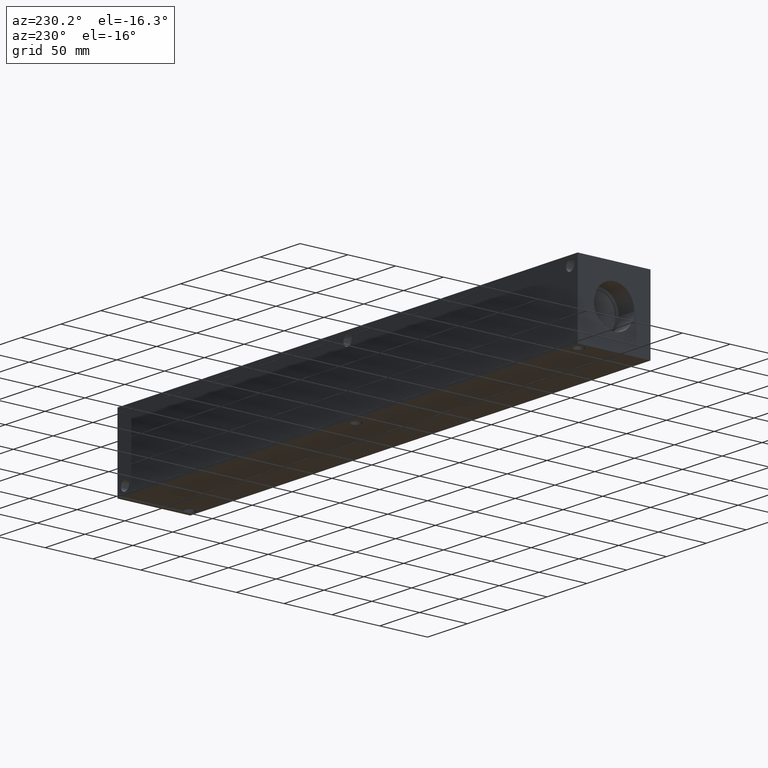
[diagram: clean part render]
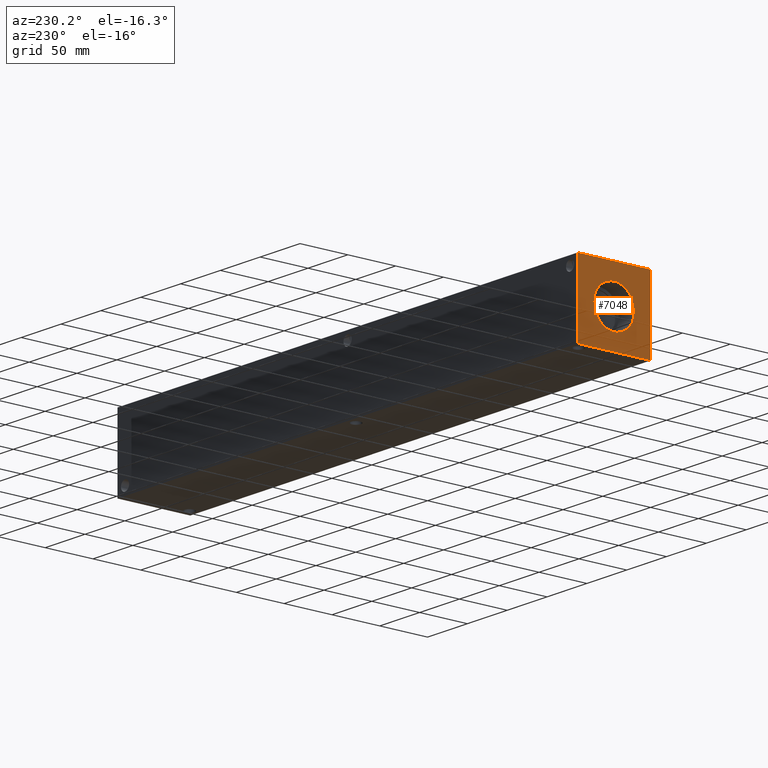
[diagram: same view with one face highlighted and labeled with its STEP entity id]
A machine part, auxiliary view. The second image highlights one B-rep face of the part: STEP entity #7048.
In plain terms, the highlighted planar face has unit normal (-1, 0, 0).
Its self-contained STEP definition (entity closure, byte-faithful):
#134=CIRCLE('',#7399,21.2344);
#135=CIRCLE('',#7400,21.2344);
#182=FACE_BOUND('',#1166,.T.);
#405=PLANE('',#7402);
#762=FACE_OUTER_BOUND('',#1165,.T.);
#1165=EDGE_LOOP('',(#6257,#6258,#6259,#6260));
#1166=EDGE_LOOP('',(#6261,#6262));
#1436=LINE('',#10902,#2112);
#1850=LINE('',#12068,#2526);
#1851=LINE('',#12069,#2527);
#1852=LINE('',#12070,#2528);
#2112=VECTOR('',#7790,10.);
#2526=VECTOR('',#8748,10.);
#2527=VECTOR('',#8749,10.);
#2528=VECTOR('',#8750,10.);
#3034=VERTEX_POINT('',#10895);
#3037=VERTEX_POINT('',#10900);
#3386=VERTEX_POINT('',#12058);
#3387=VERTEX_POINT('',#12059);
#3388=VERTEX_POINT('',#12066);
#3389=VERTEX_POINT('',#12067);
#3836=EDGE_CURVE('',#3037,#3034,#1436,.T.);
#4348=EDGE_CURVE('',#3386,#3387,#134,.T.);
#4349=EDGE_CURVE('',#3387,#3386,#135,.T.);
#4352=EDGE_CURVE('',#3388,#3389,#1850,.T.);
#4353=EDGE_CURVE('',#3389,#3034,#1851,.T.);
#4354=EDGE_CURVE('',#3388,#3037,#1852,.T.);
#6257=ORIENTED_EDGE('',*,*,#4352,.T.);
#6258=ORIENTED_EDGE('',*,*,#4353,.T.);
#6259=ORIENTED_EDGE('',*,*,#3836,.F.);
#6260=ORIENTED_EDGE('',*,*,#4354,.F.);
#6261=ORIENTED_EDGE('',*,*,#4348,.T.);
#6262=ORIENTED_EDGE('',*,*,#4349,.T.);
#7048=ADVANCED_FACE('',(#762,#182),#405,.T.);
#7399=AXIS2_PLACEMENT_3D('',#12060,#8738,#8739);
#7400=AXIS2_PLACEMENT_3D('',#12061,#8740,#8741);
#7402=AXIS2_PLACEMENT_3D('',#12065,#8746,#8747);
#7790=DIRECTION('',(0.,-1.,0.));
#8738=DIRECTION('center_axis',(1.,0.,0.));
#8739=DIRECTION('ref_axis',(0.,1.,0.));
#8740=DIRECTION('center_axis',(1.,0.,0.));
#8741=DIRECTION('ref_axis',(0.,1.,0.));
#8746=DIRECTION('center_axis',(-1.,0.,0.));
#8747=DIRECTION('ref_axis',(0.,-1.,0.));
#8748=DIRECTION('',(0.,-1.,0.));
#8749=DIRECTION('',(0.,0.,1.));
#8750=DIRECTION('',(0.,0.,1.));
#10895=CARTESIAN_POINT('',(0.,0.,76.2));
#10900=CARTESIAN_POINT('',(0.,76.2,76.2));
#10902=CARTESIAN_POINT('',(0.,76.2,76.2));
#12058=CARTESIAN_POINT('',(0.,59.3344,38.1));
#12059=CARTESIAN_POINT('',(0.,16.8656,38.1));
#12060=CARTESIAN_POINT('Origin',(0.,38.1,38.1));
#12061=CARTESIAN_POINT('Origin',(0.,38.1,38.1));
#12065=CARTESIAN_POINT('Origin',(0.,76.2,0.));
#12066=CARTESIAN_POINT('',(0.,76.2,0.));
#12067=CARTESIAN_POINT('',(0.,0.,0.));
#12068=CARTESIAN_POINT('',(0.,76.2,0.));
#12069=CARTESIAN_POINT('',(0.,0.,0.));
#12070=CARTESIAN_POINT('',(0.,76.2,0.));